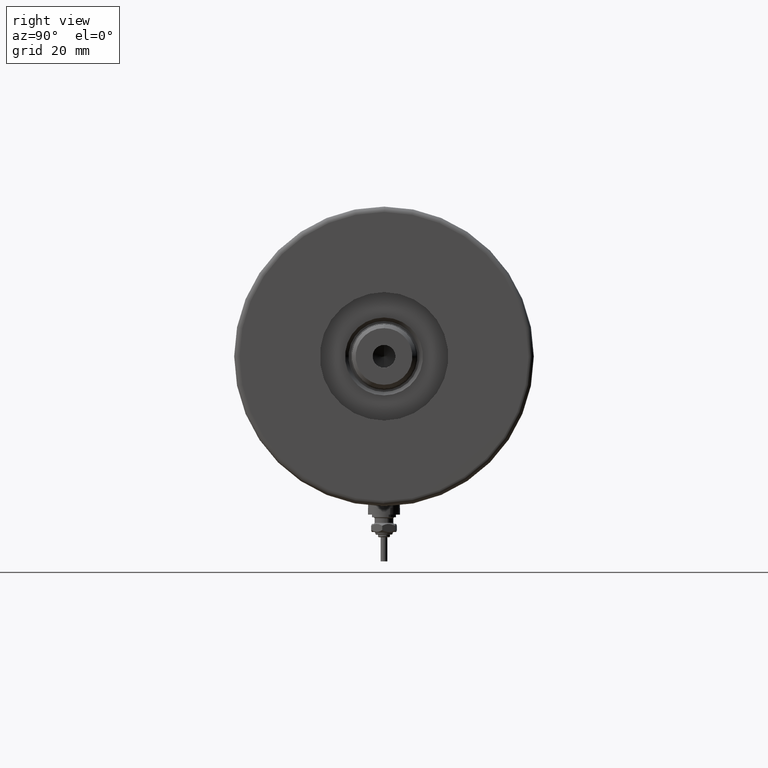
[diagram: clean part render]
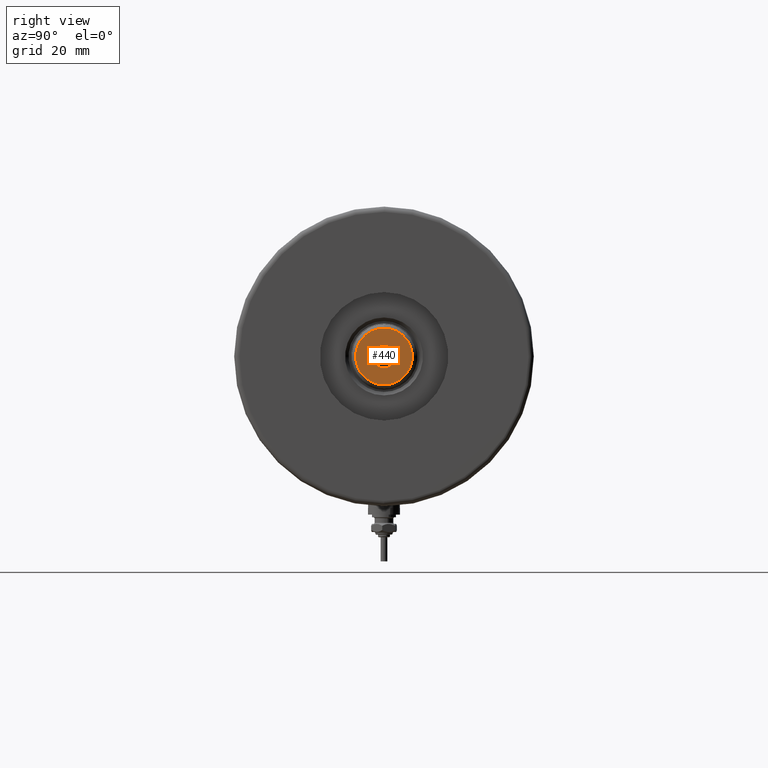
[diagram: same view with one face highlighted and labeled with its STEP entity id]
A machine part, right view. The second image highlights one B-rep face of the part: STEP entity #440.
In plain terms, the highlighted planar face has unit normal (1, 0, -0).
Its self-contained STEP definition (entity closure, byte-faithful):
#20 = ORIENTED_EDGE ( 'NONE', *, *, #4727, .T. ) ;
#64 = CARTESIAN_POINT ( 'NONE',  ( 0.000000000000000000, 0.000000000000000000, 172.7000000000000171 ) ) ;
#120 = VERTEX_POINT ( 'NONE', #6257 ) ;
#414 = DIRECTION ( 'NONE',  ( 0.000000000000000000, 0.000000000000000000, 1.000000000000000000 ) ) ;
#440 = ADVANCED_FACE ( 'NONE', ( #5869, #3971 ), #1451, .T. ) ;
#445 = DIRECTION ( 'NONE',  ( 1.000000000000000000, 0.000000000000000000, -0.000000000000000000 ) ) ;
#460 = DIRECTION ( 'NONE',  ( -0.000000000000000000, -0.000000000000000000, 1.000000000000000000 ) ) ;
#534 = AXIS2_PLACEMENT_3D ( 'NONE', #64, #414, #445 ) ;
#683 = AXIS2_PLACEMENT_3D ( 'NONE', #3672, #832, #6180 ) ;
#832 = DIRECTION ( 'NONE',  ( 0.000000000000000000, 0.000000000000000000, 1.000000000000000000 ) ) ;
#1186 = AXIS2_PLACEMENT_3D ( 'NONE', #1742, #3669, #4816 ) ;
#1451 = PLANE ( 'NONE',  #534 ) ;
#1590 = CARTESIAN_POINT ( 'NONE',  ( 4.249999999999997335, 0.000000000000000000, 172.7000000000000171 ) ) ;
#1650 = VERTEX_POINT ( 'NONE', #2762 ) ;
#1742 = CARTESIAN_POINT ( 'NONE',  ( 0.000000000000000000, 0.000000000000000000, 172.7000000000000171 ) ) ;
#2094 = CIRCLE ( 'NONE', #1186, 4.249999999999997335 ) ;
#2409 = DIRECTION ( 'NONE',  ( 1.000000000000000000, 0.000000000000000000, 0.000000000000000000 ) ) ;
#2669 = DIRECTION ( 'NONE',  ( 0.000000000000000000, 0.000000000000000000, 1.000000000000000000 ) ) ;
#2702 = EDGE_CURVE ( 'NONE', #4835, #4266, #3417, .T. ) ;
#2762 = CARTESIAN_POINT ( 'NONE',  ( 10.60000000000002629, 1.383850883036510842E-15, 172.7000000000000171 ) ) ;
#2911 = AXIS2_PLACEMENT_3D ( 'NONE', #4393, #460, #2409 ) ;
#3053 = DIRECTION ( 'NONE',  ( 1.000000000000000000, 0.000000000000000000, 0.000000000000000000 ) ) ;
#3115 = CIRCLE ( 'NONE', #3831, 10.60000000000002629 ) ;
#3131 = CIRCLE ( 'NONE', #683, 10.60000000000002629 ) ;
#3417 = CIRCLE ( 'NONE', #2911, 4.249999999999997335 ) ;
#3639 = CARTESIAN_POINT ( 'NONE',  ( -4.249999999999997335, 5.204748896376248727E-16, 172.7000000000000171 ) ) ;
#3669 = DIRECTION ( 'NONE',  ( -0.000000000000000000, -0.000000000000000000, 1.000000000000000000 ) ) ;
#3672 = CARTESIAN_POINT ( 'NONE',  ( 0.000000000000000000, 0.000000000000000000, 172.7000000000000171 ) ) ;
#3679 = ORIENTED_EDGE ( 'NONE', *, *, #4274, .F. ) ;
#3831 = AXIS2_PLACEMENT_3D ( 'NONE', #4964, #2669, #3053 ) ;
#3971 = FACE_BOUND ( 'NONE', #5630, .T. ) ;
#4266 = VERTEX_POINT ( 'NONE', #3639 ) ;
#4274 = EDGE_CURVE ( 'NONE', #4266, #4835, #2094, .T. ) ;
#4393 = CARTESIAN_POINT ( 'NONE',  ( 0.000000000000000000, 0.000000000000000000, 172.7000000000000171 ) ) ;
#4517 = EDGE_LOOP ( 'NONE', ( #4979, #20 ) ) ;
#4727 = EDGE_CURVE ( 'NONE', #1650, #120, #3115, .T. ) ;
#4816 = DIRECTION ( 'NONE',  ( 1.000000000000000000, 0.000000000000000000, 0.000000000000000000 ) ) ;
#4835 = VERTEX_POINT ( 'NONE', #1590 ) ;
#4864 = ORIENTED_EDGE ( 'NONE', *, *, #2702, .F. ) ;
#4964 = CARTESIAN_POINT ( 'NONE',  ( 0.000000000000000000, 0.000000000000000000, 172.7000000000000171 ) ) ;
#4979 = ORIENTED_EDGE ( 'NONE', *, *, #6227, .T. ) ;
#5630 = EDGE_LOOP ( 'NONE', ( #4864, #3679 ) ) ;
#5869 = FACE_OUTER_BOUND ( 'NONE', #4517, .T. ) ;
#6180 = DIRECTION ( 'NONE',  ( 1.000000000000000000, 0.000000000000000000, 0.000000000000000000 ) ) ;
#6227 = EDGE_CURVE ( 'NONE', #120, #1650, #3131, .T. ) ;
#6257 = CARTESIAN_POINT ( 'NONE',  ( -10.60000000000002629, 0.000000000000000000, 172.7000000000000171 ) ) ;